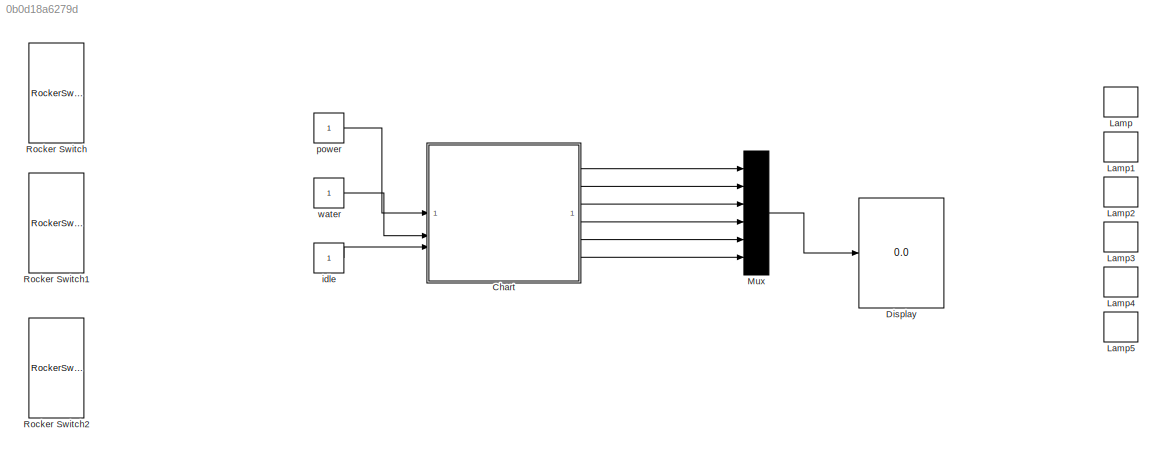
MODEL slx_0b0d18a6279d
KIND model
CONFIG AbsTol = auto
CONFIG EnableMultiTasking = off
CONFIG FixedStep = auto
CONFIG MaxStep = auto
CONFIG MinStep = auto
CONFIG RelTol = 1e-3
CONFIG SampleTimeConstraint = Unconstrained
CONFIG SolverName = VariableStepAuto
CONFIG StartTime = 0.0
CONFIG StopTime = inf
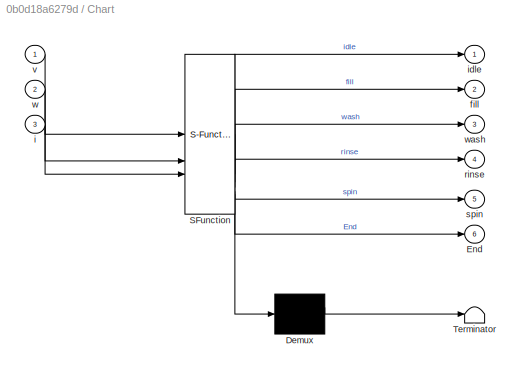
BLOCK [SubSystem] Chart
  ErrorFcn = Stateflow.Translate.translate
  PermitHierarchicalResolution = ExplicitOnly
  SFBlockType = Chart
  TreatAsAtomicUnit = on
BLOCK [Demux] Chart/ Demux 
  Outputs = 1
BLOCK [S-Function] Chart/ SFunction 
  EnableBusSupport = on
  FunctionName = sf_sfun
  PortCounts = [3 7]
  SFcnIsStateOwnerBlock = off
  SFunctionDeploymentMode = off
  Tag = Stateflow S-Function 3
BLOCK [Terminator] Chart/ Terminator 
BLOCK [Outport] Chart/End
  Port = 6
BLOCK [Outport] Chart/fill
  Port = 2
BLOCK [Inport] Chart/i
  Port = 3
BLOCK [Outport] Chart/idle
BLOCK [Outport] Chart/rinse
  Port = 4
BLOCK [Outport] Chart/spin
  Port = 5
BLOCK [Inport] Chart/v
BLOCK [Inport] Chart/w
  Port = 2
BLOCK [Outport] Chart/wash
  Port = 3
BLOCK [Display] Display
  Decimation = 1
BLOCK [LampBlock] Lamp
  LabelPosition = Hide
BLOCK [LampBlock] Lamp1
  LabelPosition = Hide
BLOCK [LampBlock] Lamp2
  LabelPosition = Hide
BLOCK [LampBlock] Lamp3
  LabelPosition = Hide
BLOCK [LampBlock] Lamp4
  LabelPosition = Hide
BLOCK [LampBlock] Lamp5
  LabelPosition = Hide
BLOCK [Mux] Mux
  DisplayOption = bar
  Inputs = 6
BLOCK [RockerSwitchBlock] Rocker Switch
BLOCK [RockerSwitchBlock] Rocker Switch1
BLOCK [RockerSwitchBlock] Rocker Switch2
BLOCK [Constant] idle
BLOCK [Constant] power
BLOCK [Constant] water
LINE Chart:1 -> Mux:1
LINE Chart:2 -> Mux:2
LINE Chart:3 -> Mux:3
LINE Chart:4 -> Mux:4
LINE Chart:5 -> Mux:5
LINE Chart:6 -> Mux:6
LINE Mux:1 -> Display:1
LINE idle:1 -> Chart:3
LINE power:1 -> Chart:1
LINE water:1 -> Chart:2
CHART Chart states=10 transitions=22
  STATE_LABEL 'Power_off\nentry:'
  STATE_LABEL 'power_on\nentry:'
  STATE_LABEL 'idle\nentry:\nidle=1;\n'
  STATE_LABEL 'fill\nentry:\nduring:\nfill=1'
  STATE_LABEL 'water_on\nentry:'
  STATE_LABEL 'water_off\nentry:'
  STATE_LABEL 'wash\nentry:\nfill=0;\nduring:\nwash=1'
  STATE_LABEL 'End\nentry:\nspin=0;\nduring:\nEnd=1;'
  STATE_LABEL 'spin\nentry:\nrinse=0;\nduring:\nspin=1;'
  STATE_LABEL 'rinse\nentry:\nwash=0;\nduring:\nrinse=1;'
CHART  states=0 transitions=0
